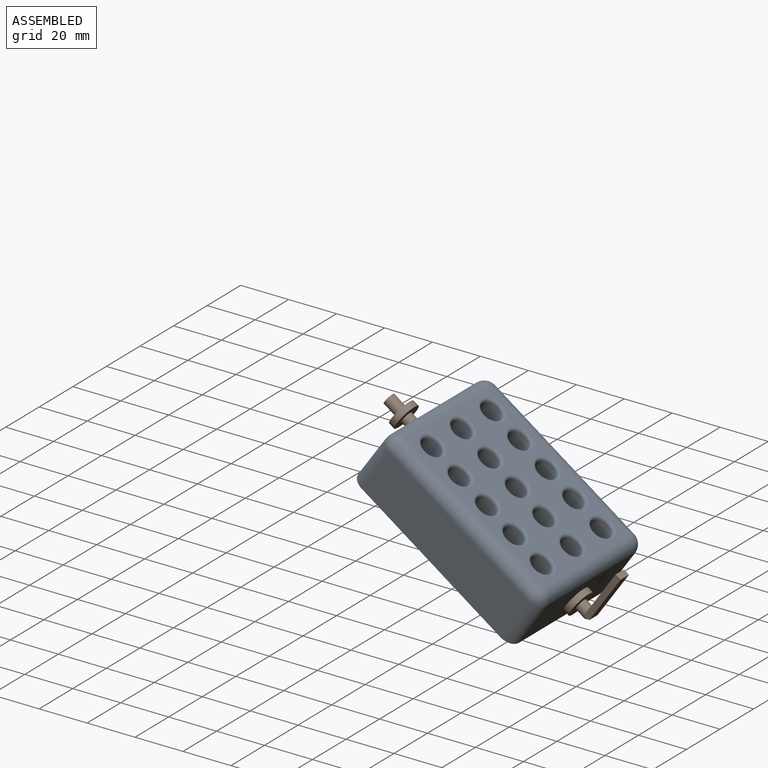
[diagram: assembled view]
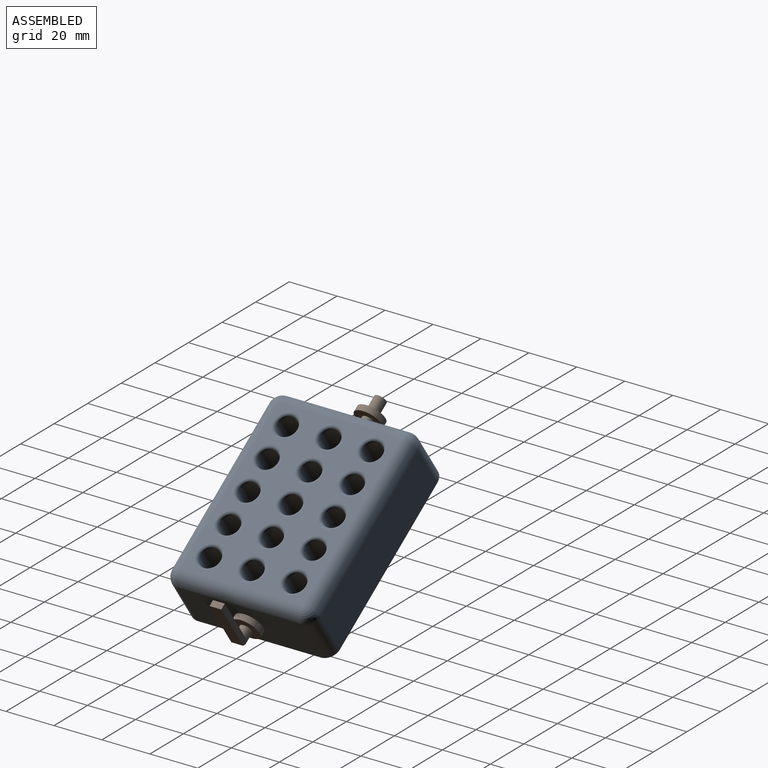
[diagram: assembled view, second angle]
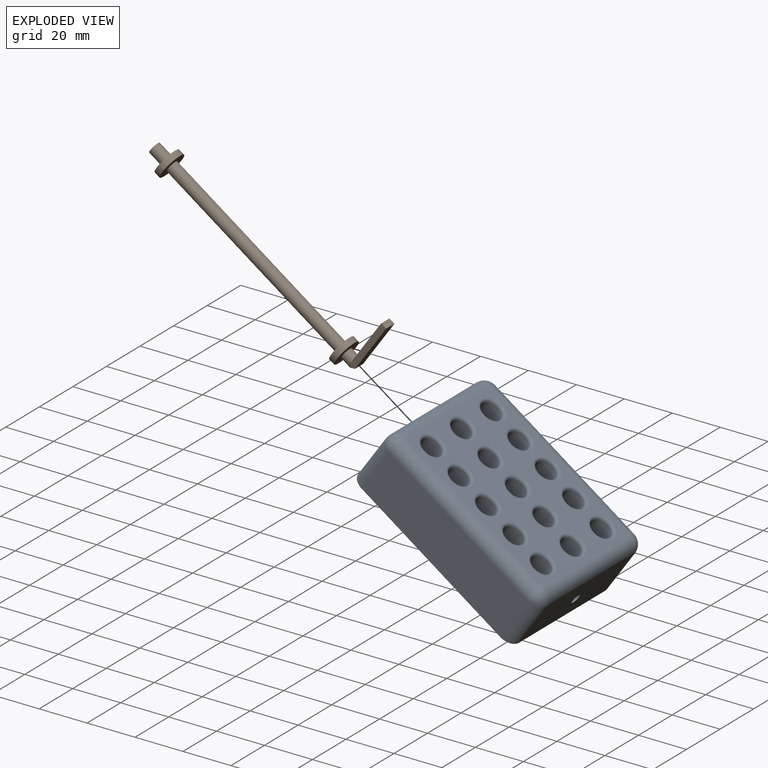
[diagram: exploded view]
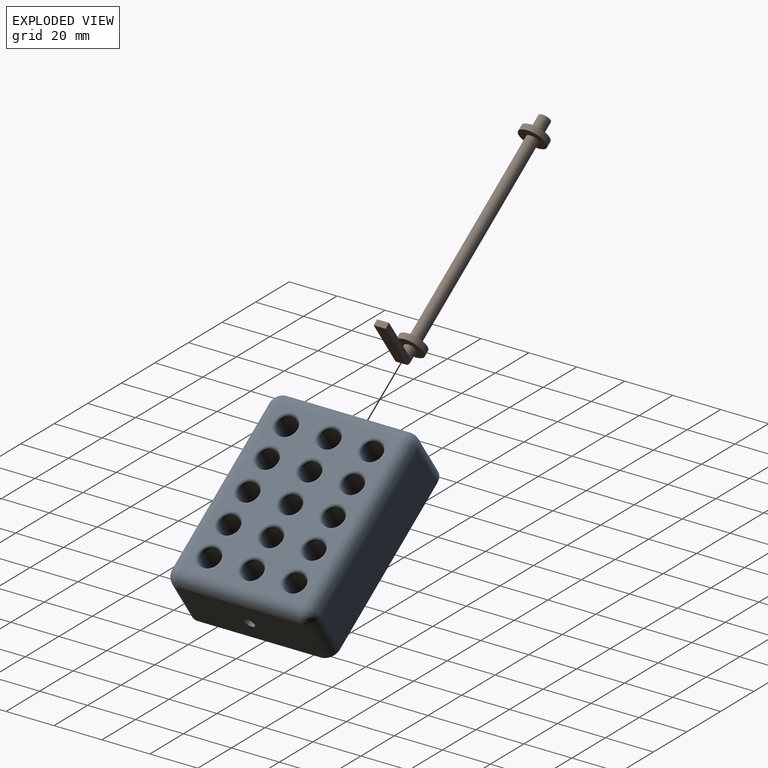
[diagram: exploded view, second angle]
ASSEMBLY  parts=2 mates=2
PART A: 54 faces, bbox 81x61.5x25.4 mm
  f0: plane 70.81x20.32mm, normal (0,1,0), area 1438.8mm2, adj f20,f21,f40,f42
  f1: plane 51.39x20.32mm, normal (-1,0,0), area 1029.7mm2, adj f20,f22,f42,f44,f53
  f2: plane 70.81x20.32mm, normal (0,-1,0), area 1438.8mm2, adj f20,f24,f44,f46
  f3: cylinder r=4.2mm len=24.13mm, axis (0,0,-1), area 636.4mm2, adj f20,f39
  f4: cylinder r=4.2mm len=24.13mm, axis (0,0,-1), area 606.4mm2, adj f20,f38,f52,f53
  f5: cylinder r=4.2mm len=24.13mm, axis (0,0,-1), area 636.4mm2, adj f20,f37
  f6: cylinder r=4.2mm len=24.13mm, axis (0,0,-1), area 636.4mm2, adj f20,f36
  f7: cylinder r=4.2mm len=24.13mm, axis (0,0,-1), area 606.4mm2, adj f20,f35,f51,f52
  f8: cylinder r=4.2mm len=24.13mm, axis (0,0,-1), area 636.4mm2, adj f20,f34
  f9: cylinder r=4.2mm len=24.13mm, axis (0,0,-1), area 636.4mm2, adj f20,f33
  f10: cylinder r=4.2mm len=24.13mm, axis (0,0,-1), area 606.4mm2, adj f20,f32,f50,f51
  f11: cylinder r=4.2mm len=24.13mm, axis (0,0,-1), area 636.4mm2, adj f20,f31
  f12: cylinder r=4.2mm len=24.13mm, axis (0,0,-1), area 636.4mm2, adj f20,f30
  f13: cylinder r=4.2mm len=24.13mm, axis (0,0,-1), area 606.4mm2, adj f20,f29,f49,f50
  f14: cylinder r=4.2mm len=24.13mm, axis (0,0,-1), area 636.4mm2, adj f20,f28
  f15: cylinder r=4.2mm len=24.13mm, axis (0,0,-1), area 636.4mm2, adj f20,f27
  f16: cylinder r=4.2mm len=24.13mm, axis (0,0,-1), area 606.4mm2, adj f20,f26,f48,f49
  f17: cylinder r=4.2mm len=24.13mm, axis (0,0,-1), area 636.4mm2, adj f20,f25
  f18: plane 51.39x20.32mm, normal (1,0,0), area 1029.7mm2, adj f20,f23,f40,f46,f48
  f19: plane 70.81x51.39mm, normal (0,0,1), area 2229.7mm2, adj f21,f22,f23,f24,f25,f26,f27,f28
  f20: plane 80.97x61.55mm, normal (0,0,-1), area 4130.7mm2, adj f0,f1,f2,f3,f4,f5,f6,f7
  f21: cylinder r=5.08mm len=70.81mm, axis (1,0,0), area 565mm2, adj f0,f19,f41,f43
  f22: cylinder r=5.08mm len=51.39mm, axis (0,1,0), area 410mm2, adj f1,f19,f43,f45
  f23: cylinder r=5.08mm len=51.39mm, axis (0,-1,0), area 410mm2, adj f18,f19,f41,f47
  f24: cylinder r=5.08mm len=70.81mm, axis (-1,0,0), area 565mm2, adj f2,f19,f45,f47
  f25: torus R=5.47mm, axis (0,0,1), area 58.4mm2, adj f17,f19
  f26: torus R=5.47mm, axis (0,0,1), area 58.4mm2, adj f16,f19
  f27: torus R=5.47mm, axis (0,0,1), area 58.4mm2, adj f15,f19
  f28: torus R=5.47mm, axis (0,0,1), area 58.4mm2, adj f14,f19
  f29: torus R=5.47mm, axis (0,0,1), area 58.4mm2, adj f13,f19
  f30: torus R=5.47mm, axis (0,0,1), area 58.4mm2, adj f12,f19
  f31: torus R=5.47mm, axis (0,0,1), area 58.4mm2, adj f11,f19
  f32: torus R=5.47mm, axis (0,0,1), area 58.4mm2, adj f10,f19
  f33: torus R=5.47mm, axis (0,0,1), area 58.4mm2, adj f9,f19
  f34: torus R=5.47mm, axis (0,0,1), area 58.4mm2, adj f8,f19
  f35: torus R=5.47mm, axis (0,0,1), area 58.4mm2, adj f7,f19
  f36: torus R=5.47mm, axis (0,0,1), area 58.4mm2, adj f6,f19
  f37: torus R=5.47mm, axis (0,0,1), area 58.4mm2, adj f5,f19
  f38: torus R=5.47mm, axis (0,0,1), area 58.4mm2, adj f4,f19
  f39: torus R=5.47mm, axis (0,0,1), area 58.4mm2, adj f3,f19
  f40: cylinder r=5.08mm len=20.32mm, axis (0,0,1), area 162.1mm2, adj f0,f18,f20,f41
  f41: sphere r=5.08mm, area 40.5mm2, adj f21,f23,f40
  f42: cylinder r=5.08mm len=20.32mm, axis (0,0,-1), area 162.1mm2, adj f0,f1,f20,f43
  f43: sphere r=5.08mm, area 40.5mm2, adj f21,f22,f42
  f44: cylinder r=5.08mm len=20.32mm, axis (0,0,1), area 162.1mm2, adj f1,f2,f20,f45
  f45: sphere r=5.08mm, area 40.5mm2, adj f22,f24,f44
  f46: cylinder r=5.08mm len=20.32mm, axis (0,0,-1), area 162.1mm2, adj f2,f18,f20,f47
  f47: sphere r=5.08mm, area 40.5mm2, adj f23,f24,f46
  f48: cylinder r=2.15mm len=8.94mm, axis (-1,0,0), area 116.6mm2, adj f16,f18
  f49: cylinder r=2.15mm len=6.76mm, axis (-1,0,0), area 83.1mm2, adj f13,f16
  f50: cylinder r=2.15mm len=6.76mm, axis (-1,0,0), area 83.1mm2, adj f10,f13
  f51: cylinder r=2.15mm len=6.76mm, axis (-1,0,0), area 83.1mm2, adj f7,f10
  f52: cylinder r=2.15mm len=6.76mm, axis (-1,0,0), area 83.1mm2, adj f4,f7
  f53: cylinder r=2.15mm len=8.94mm, axis (-1,0,0), area 116.6mm2, adj f1,f4
PART B: 16 faces, bbox 28.5x104.1x11.4 mm
  f0: cylinder r=2.47mm len=86.36mm, axis (0,1,0), area 1337.9mm2, adj f2,f7
  f1: cylinder r=5.71mm len=11.43mm, axis (0,1,0), area 91.2mm2, adj f2,f3
  f2: plane 11.43x11.43mm, normal (0,-1,0), area 83.5mm2, adj f0,f1
  f3: plane 11.43x11.43mm, normal (0,1,0), area 83.5mm2, adj f1,f4
  f4: cylinder r=2.47mm len=6.35mm, axis (0,1,0), area 66.6mm2, adj f3,f10,f11,f13,f15
  f5: cylinder r=5.71mm len=11.43mm, axis (0,1,0), area 91.2mm2, adj f6,f7
  f6: plane 11.43x11.43mm, normal (0,-1,0), area 83.5mm2, adj f5,f9
  f7: plane 11.43x11.43mm, normal (0,1,0), area 83.5mm2, adj f0,f5
  f8: plane 4.93x4.93mm, normal (0,-1,0), area 19.1mm2, adj f9
  f9: cylinder r=2.47mm len=6.35mm, axis (0,1,0), area 98.4mm2, adj f6,f8
  f10: plane 22.78x4.93mm, normal (0,-1,0), area 102.8mm2, adj f4,f11,f12,f13
  f11: plane 22.78x2.54mm, normal (0,0,-1), area 57.9mm2, adj f4,f10,f12,f14
  f12: plane 4.93x2.54mm, normal (1,0,0), area 12.5mm2, adj f10,f11,f13,f14
  f13: plane 22.78x2.54mm, normal (0,0,1), area 57.9mm2, adj f4,f10,f12,f14
  f14: plane 22.78x4.93mm, normal (0,1,0), area 112.3mm2, adj f11,f12,f13,f15
  f15: cylinder r=5.08mm len=4.93mm, axis (0,0,-1), area 13.4mm2, adj f4,f14
PLACE A rot(axis=(0,1,0),35deg) t=(-87.02,-40.06,25.59)mm
PLACE B rot(axis=(-0.81,-0.42,-0.42),102.3deg) t=(-42.83,-40.06,7.04)mm
MATE slider B.f0 <-> A.f48  axis (0.82,0,-0.57) through (-118.78,-40.06,60.22)mm
MATE revolute B.f0 <-> A.f48  axis (0.82,0,-0.57) through (-48.03,-40.06,10.68)mm
